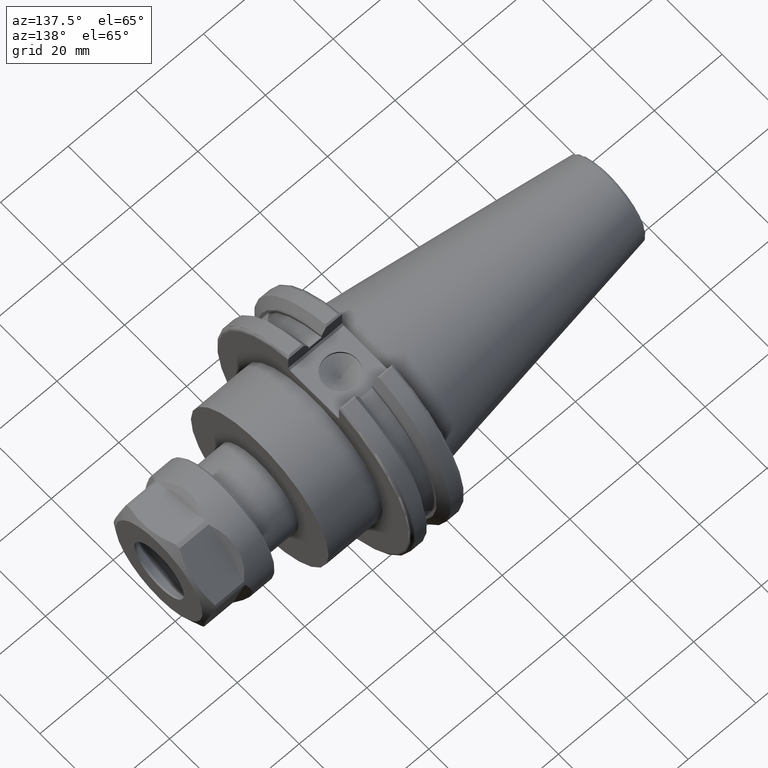
[diagram: clean part render]
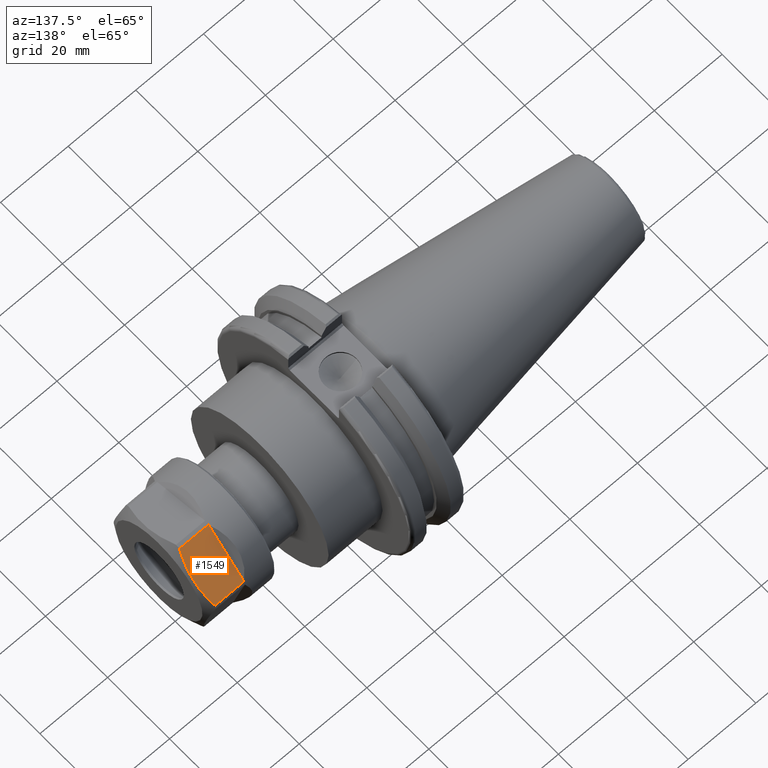
[diagram: same view with one face highlighted and labeled with its STEP entity id]
A machine part, auxiliary view. The second image highlights one B-rep face of the part: STEP entity #1549.
In plain terms, the highlighted planar face has unit normal (0, -0.6962, -0.7179).
Its self-contained STEP definition (entity closure, byte-faithful):
#88=(
BOUNDED_CURVE()
B_SPLINE_CURVE(2,(#2795,#2796,#2797),.UNSPECIFIED.,.F.,.F.)
B_SPLINE_CURVE_WITH_KNOTS((3,3),(1.89977904823277,4.47851568551626),
 .UNSPECIFIED.)
CURVE()
GEOMETRIC_REPRESENTATION_ITEM()
RATIONAL_B_SPLINE_CURVE((1.51788044142271,1.72026450027926,1.51788044142274))
REPRESENTATION_ITEM('')
);
#161=PLANE('',#1780);
#257=FACE_OUTER_BOUND('',#356,.T.);
#356=EDGE_LOOP('',(#1384,#1385,#1386,#1387));
#466=LINE('',#2762,#565);
#467=LINE('',#2766,#566);
#473=LINE('',#2808,#572);
#565=VECTOR('',#2155,8.567949192431);
#566=VECTOR('',#2158,8.567949192431);
#572=VECTOR('',#2180,15.9999999999995);
#777=VERTEX_POINT('',#2759);
#778=VERTEX_POINT('',#2761);
#779=VERTEX_POINT('',#2763);
#780=VERTEX_POINT('',#2765);
#976=EDGE_CURVE('',#778,#777,#466,.T.);
#978=EDGE_CURVE('',#779,#780,#467,.T.);
#990=EDGE_CURVE('',#777,#780,#88,.T.);
#995=EDGE_CURVE('',#778,#779,#473,.T.);
#1384=ORIENTED_EDGE('',*,*,#995,.F.);
#1385=ORIENTED_EDGE('',*,*,#976,.T.);
#1386=ORIENTED_EDGE('',*,*,#990,.T.);
#1387=ORIENTED_EDGE('',*,*,#978,.F.);
#1549=ADVANCED_FACE('',(#257),#161,.F.);
#1780=AXIS2_PLACEMENT_3D('',#2807,#2178,#2179);
#2155=DIRECTION('',(1.,0.,0.));
#2158=DIRECTION('',(1.,0.,0.));
#2178=DIRECTION('center_axis',(0.,-0.866025403784429,-0.500000000000017));
#2179=DIRECTION('ref_axis',(0.,0.500000000000017,-0.866025403784429));
#2180=DIRECTION('',(0.,0.500000000000017,-0.866025403784429));
#2759=CARTESIAN_POINT('',(7.767949192431,8.990381056767,14.42820323028));
#2761=CARTESIAN_POINT('',(-0.8,8.990381056767,14.42820323028));
#2762=CARTESIAN_POINT('',(-0.8,8.990381056767,14.42820323028));
#2763=CARTESIAN_POINT('',(-0.8,16.99038105677,0.5717967697245));
#2765=CARTESIAN_POINT('',(7.767949192431,16.99038105677,0.5717967697245));
#2766=CARTESIAN_POINT('',(-0.8,16.99038105677,0.5717967697245));
#2795=CARTESIAN_POINT('Ctrl Pts',(7.76794919242971,8.99038105676321,14.4282032302778));
#2796=CARTESIAN_POINT('Ctrl Pts',(9.94150314702762,12.9903810567648,7.49999999999987));
#2797=CARTESIAN_POINT('Ctrl Pts',(7.76794919243006,16.9903810567662,0.571796769722221));
#2807=CARTESIAN_POINT('Origin',(9.5,7.990381056767,16.16025403784));
#2808=CARTESIAN_POINT('',(-0.8,8.990381056767,14.42820323028));